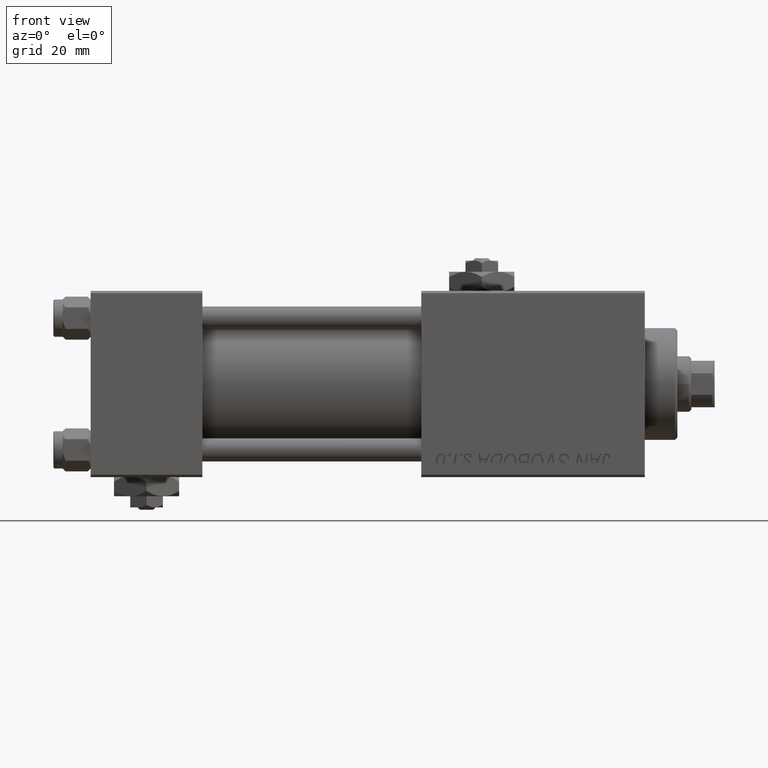
[diagram: clean part render]
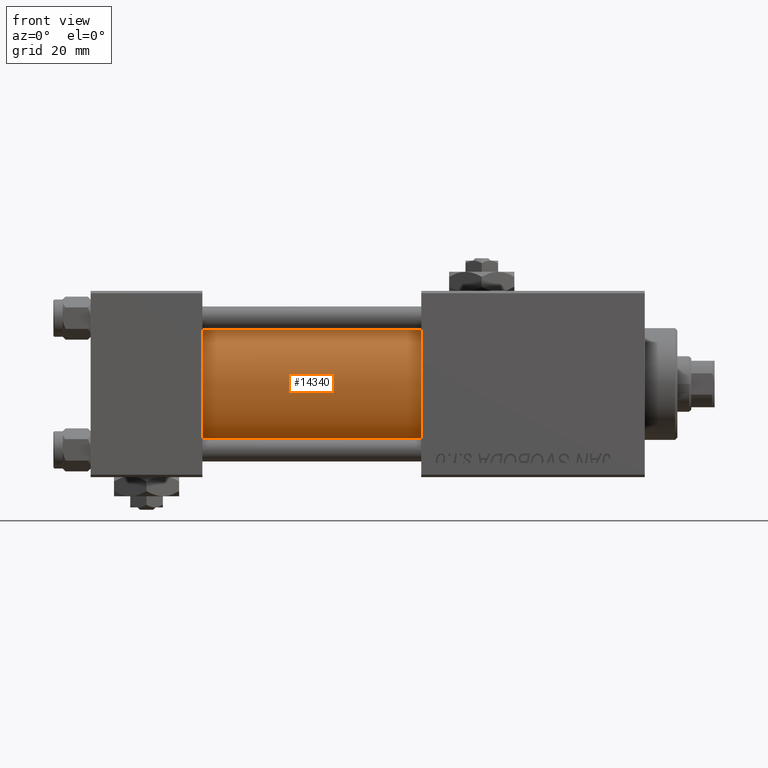
[diagram: same view with one face highlighted and labeled with its STEP entity id]
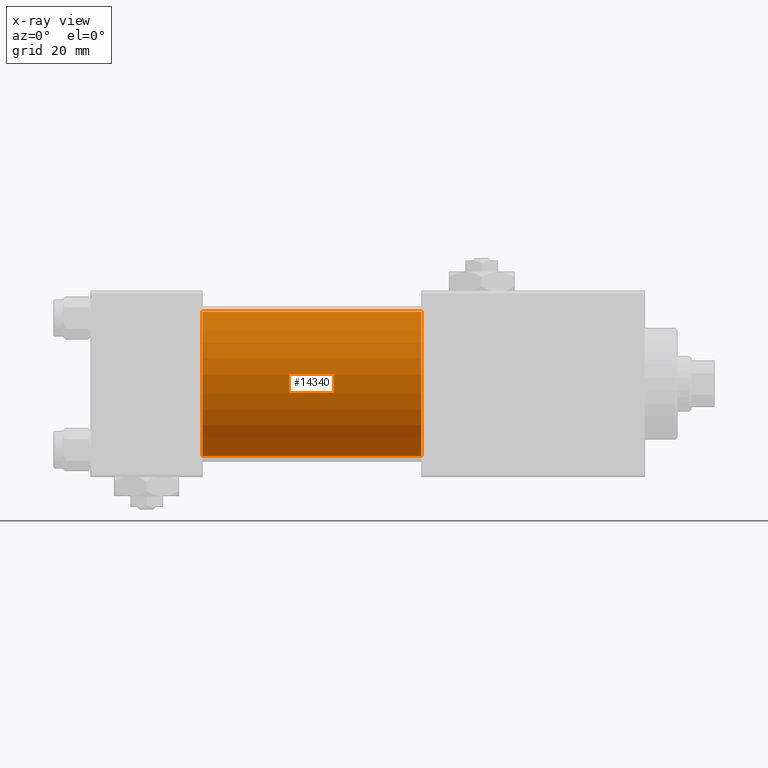
[diagram: x-ray of the same camera — body ghosted, the highlighted face saturated]
A machine part, front view. The second image highlights one B-rep face of the part: STEP entity #14340.
The next image is the same camera in x-ray: the body ghosted, the highlighted face saturated — about 0% of this face is hidden behind the body in this view.
In plain terms, the highlighted cylindrical surface (partial cylindrical patch) has radius 15.5 mm, axis along (-1, -0, -0).
Its self-contained STEP definition (entity closure, byte-faithful):
#594 = VECTOR ( 'NONE', #41462, 1000.000000000000000 ) ;
#657 = CARTESIAN_POINT ( 'NONE',  ( 71.00000000000001421, -2.602085213965210642E-15, 15.50000000000000000 ) ) ;
#1195 = DIRECTION ( 'NONE',  ( 1.000000000000000000, 0.000000000000000000, 0.000000000000000000 ) ) ;
#4351 = VERTEX_POINT ( 'NONE', #25128 ) ;
#4702 = AXIS2_PLACEMENT_3D ( 'NONE', #51190, #22361, #43511 ) ;
#5312 = CARTESIAN_POINT ( 'NONE',  ( 24.00000000000000000, -7.038826752868131828E-16, -15.50000000000000000 ) ) ;
#5490 = LINE ( 'NONE', #36703, #594 ) ;
#9446 = EDGE_CURVE ( 'NONE', #34609, #4351, #19036, .T. ) ;
#11713 = ORIENTED_EDGE ( 'NONE', *, *, #27905, .F. ) ;
#12787 = DIRECTION ( 'NONE',  ( -1.000000000000000000, -0.000000000000000000, -0.000000000000000000 ) ) ;
#14340 = ADVANCED_FACE ( 'NONE', ( #16480 ), #31824, .T. ) ;
#14679 = CIRCLE ( 'NONE', #47627, 15.50000000000000000 ) ;
#16480 = FACE_OUTER_BOUND ( 'NONE', #42800, .T. ) ;
#16962 = EDGE_CURVE ( 'NONE', #44233, #37542, #14679, .T. ) ;
#19036 = CIRCLE ( 'NONE', #4702, 15.50000000000000000 ) ;
#21535 = DIRECTION ( 'NONE',  ( 0.000000000000000000, 0.000000000000000000, 1.000000000000000000 ) ) ;
#22361 = DIRECTION ( 'NONE',  ( 1.000000000000000000, 0.000000000000000000, 0.000000000000000000 ) ) ;
#22811 = ORIENTED_EDGE ( 'NONE', *, *, #9446, .F. ) ;
#23559 = VECTOR ( 'NONE', #33740, 1000.000000000000000 ) ;
#24430 = ORIENTED_EDGE ( 'NONE', *, *, #46297, .T. ) ;
#25128 = CARTESIAN_POINT ( 'NONE',  ( 71.00000000000001421, -7.038826752868131828E-16, -15.50000000000000000 ) ) ;
#27905 = EDGE_CURVE ( 'NONE', #4351, #37542, #5490, .T. ) ;
#30244 = CARTESIAN_POINT ( 'NONE',  ( 24.00000000000000000, -2.602085213965210642E-15, 0.000000000000000000 ) ) ;
#31824 = CYLINDRICAL_SURFACE ( 'NONE', #33428, 15.50000000000000000 ) ;
#32685 = LINE ( 'NONE', #48812, #23559 ) ;
#33428 = AXIS2_PLACEMENT_3D ( 'NONE', #47954, #12787, #36076 ) ;
#33740 = DIRECTION ( 'NONE',  ( -1.000000000000000000, -0.000000000000000000, -0.000000000000000000 ) ) ;
#34609 = VERTEX_POINT ( 'NONE', #657 ) ;
#36076 = DIRECTION ( 'NONE',  ( 0.000000000000000000, 0.000000000000000000, 1.000000000000000000 ) ) ;
#36703 = CARTESIAN_POINT ( 'NONE',  ( 71.00000000000001421, -7.038826752868131828E-16, -15.50000000000000000 ) ) ;
#37542 = VERTEX_POINT ( 'NONE', #5312 ) ;
#40206 = ORIENTED_EDGE ( 'NONE', *, *, #16962, .T. ) ;
#41462 = DIRECTION ( 'NONE',  ( -1.000000000000000000, -0.000000000000000000, -0.000000000000000000 ) ) ;
#42800 = EDGE_LOOP ( 'NONE', ( #11713, #22811, #24430, #40206 ) ) ;
#43511 = DIRECTION ( 'NONE',  ( 0.000000000000000000, 0.000000000000000000, -1.000000000000000000 ) ) ;
#44233 = VERTEX_POINT ( 'NONE', #49637 ) ;
#46297 = EDGE_CURVE ( 'NONE', #34609, #44233, #32685, .T. ) ;
#47627 = AXIS2_PLACEMENT_3D ( 'NONE', #30244, #1195, #21535 ) ;
#47954 = CARTESIAN_POINT ( 'NONE',  ( 71.00000000000001421, -2.602085213965210642E-15, 0.000000000000000000 ) ) ;
#48812 = CARTESIAN_POINT ( 'NONE',  ( 71.00000000000001421, -2.602085213965210642E-15, 15.50000000000000000 ) ) ;
#49637 = CARTESIAN_POINT ( 'NONE',  ( 24.00000000000000000, -2.602085213965210642E-15, 15.50000000000000000 ) ) ;
#51190 = CARTESIAN_POINT ( 'NONE',  ( 71.00000000000001421, -2.602085213965210642E-15, 0.000000000000000000 ) ) ;